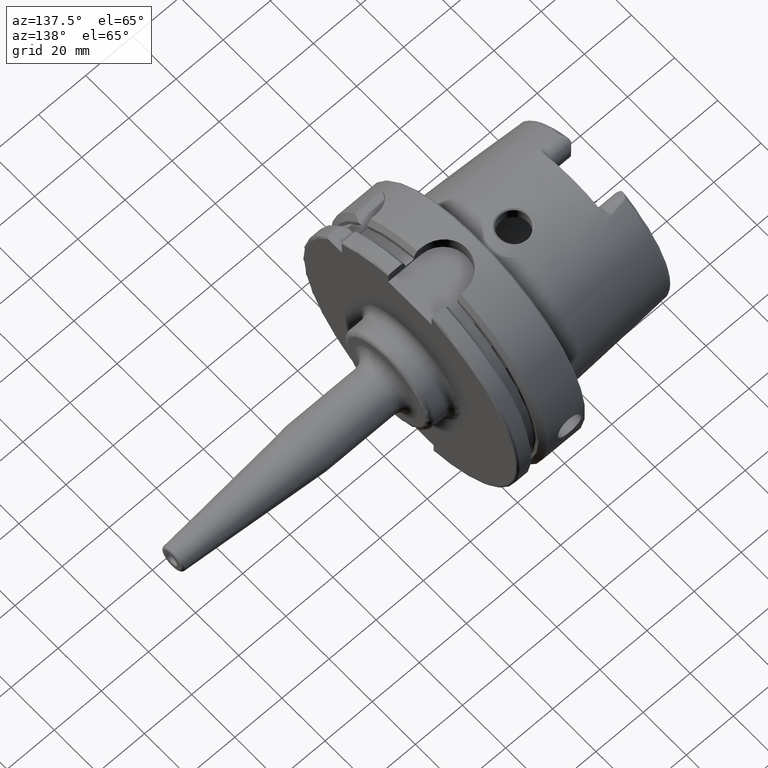
[diagram: clean part render]
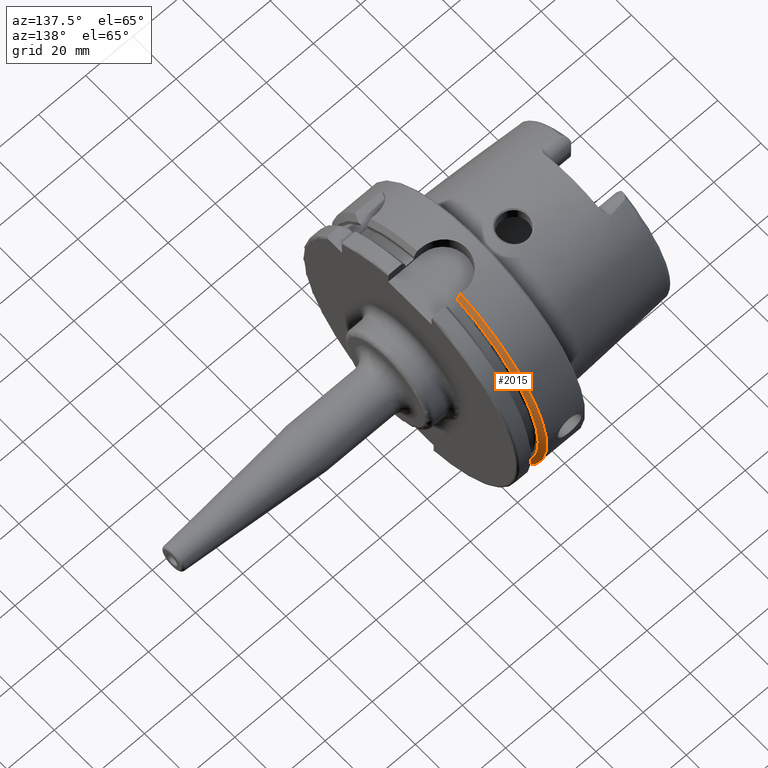
[diagram: same view with one face highlighted and labeled with its STEP entity id]
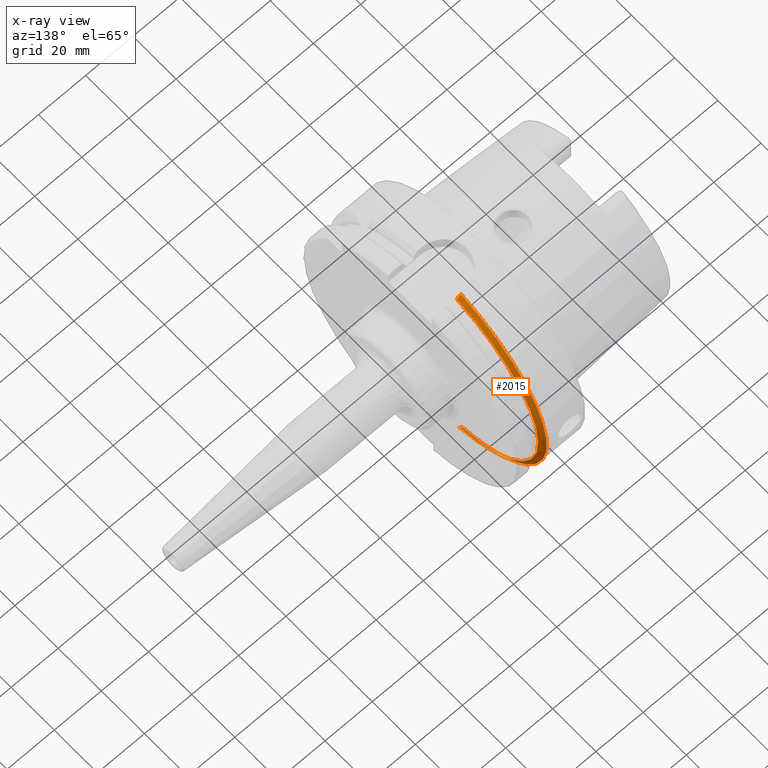
[diagram: x-ray of the same camera — body ghosted, the highlighted face saturated]
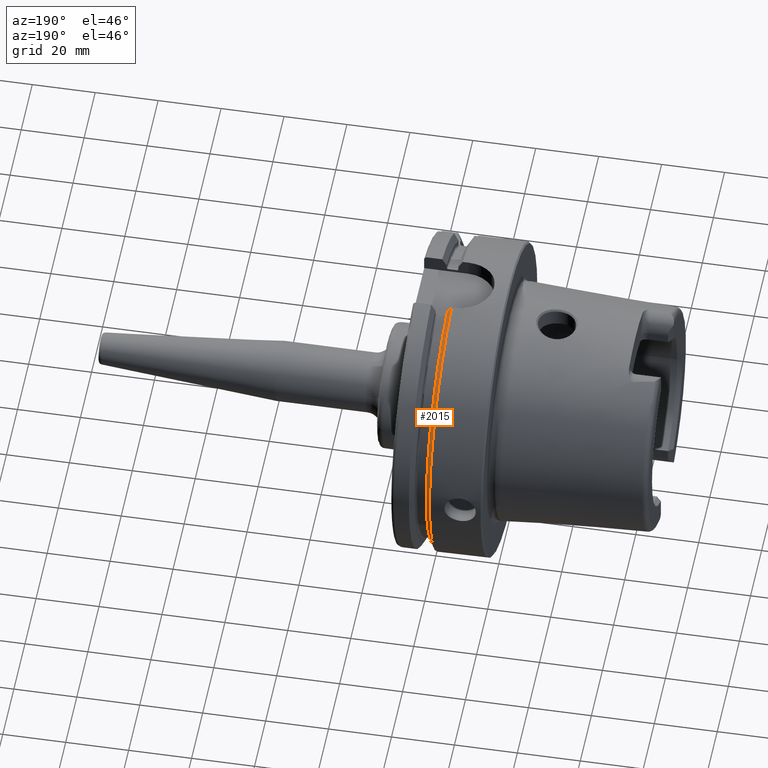
[diagram: same view with one face highlighted and labeled with its STEP entity id]
A machine part, auxiliary view. The second image highlights one B-rep face of the part: STEP entity #2015.
The next image is the same camera in x-ray: the body ghosted, the highlighted face saturated — about 6% of this face is hidden behind the body in this view.
A second angle (auxiliary view) of the same face is appended — the face is thin or edge-on in the first view.
In plain terms, the highlighted conical surface has half-angle 60 deg.
Its self-contained STEP definition (entity closure, byte-faithful):
#23=(
BOUNDED_CURVE()
B_SPLINE_CURVE(2,(#4102,#4103,#4104),.UNSPECIFIED.,.F.,.F.)
B_SPLINE_CURVE_WITH_KNOTS((3,3),(0.,0.282923490805558),.UNSPECIFIED.)
CURVE()
GEOMETRIC_REPRESENTATION_ITEM()
RATIONAL_B_SPLINE_CURVE((1.,1.00031934109636,1.))
REPRESENTATION_ITEM('')
);
#28=(
BOUNDED_CURVE()
B_SPLINE_CURVE(2,(#4267,#4268,#4269),.UNSPECIFIED.,.F.,.F.)
B_SPLINE_CURVE_WITH_KNOTS((3,3),(0.,0.281931851964124),.UNSPECIFIED.)
CURVE()
GEOMETRIC_REPRESENTATION_ITEM()
RATIONAL_B_SPLINE_CURVE((1.,1.00031639798907,1.))
REPRESENTATION_ITEM('')
);
#101=CONICAL_SURFACE('',#2245,48.7987976320958,1.0471975511966);
#465=FACE_OUTER_BOUND('',#588,.T.);
#588=EDGE_LOOP('',(#1674,#1675,#1676,#1677));
#702=CIRCLE('',#2195,50.);
#726=CIRCLE('',#2244,47.5975952641917);
#901=VERTEX_POINT('',#3983);
#902=VERTEX_POINT('',#3985);
#920=VERTEX_POINT('',#4101);
#945=VERTEX_POINT('',#4263);
#1143=EDGE_CURVE('',#902,#901,#702,.T.);
#1173=EDGE_CURVE('',#920,#902,#23,.T.);
#1213=EDGE_CURVE('',#920,#945,#726,.T.);
#1215=EDGE_CURVE('',#901,#945,#28,.T.);
#1674=ORIENTED_EDGE('',*,*,#1173,.T.);
#1675=ORIENTED_EDGE('',*,*,#1143,.T.);
#1676=ORIENTED_EDGE('',*,*,#1215,.T.);
#1677=ORIENTED_EDGE('',*,*,#1213,.F.);
#2015=ADVANCED_FACE('',(#465),#101,.T.);
#2195=AXIS2_PLACEMENT_3D('',#3986,#2615,#2616);
#2244=AXIS2_PLACEMENT_3D('',#4264,#2738,#2739);
#2245=AXIS2_PLACEMENT_3D('',#4266,#2741,#2742);
#2615=DIRECTION('center_axis',(1.,0.,0.));
#2616=DIRECTION('ref_axis',(0.,0.,-1.));
#2738=DIRECTION('center_axis',(1.,0.,0.));
#2739=DIRECTION('ref_axis',(0.,0.,-1.));
#2741=DIRECTION('center_axis',(-1.,0.,0.));
#2742=DIRECTION('ref_axis',(0.,1.,0.));
#3983=CARTESIAN_POINT('',(16.7379709790786,10.,48.9897948556636));
#3985=CARTESIAN_POINT('',(16.7379709790786,11.,-48.7749935930288));
#3986=CARTESIAN_POINT('Origin',(16.7379709790786,0.,0.));
#4101=CARTESIAN_POINT('',(18.125,11.,-46.3090819919139));
#4102=CARTESIAN_POINT('Ctrl Pts',(18.125,11.,-46.3090819919139));
#4103=CARTESIAN_POINT('Ctrl Pts',(17.4494711035784,11.,-47.5116880808765));
#4104=CARTESIAN_POINT('Ctrl Pts',(16.7379709790786,11.,-48.7749935930288));
#4263=CARTESIAN_POINT('',(18.125,10.,46.5352670018536));
#4264=CARTESIAN_POINT('Origin',(18.125,0.,0.));
#4266=CARTESIAN_POINT('Origin',(17.4314854895393,0.,0.));
#4267=CARTESIAN_POINT('Ctrl Pts',(16.7379709790786,10.,48.9897948556636));
#4268=CARTESIAN_POINT('Ctrl Pts',(17.4493054275198,10.,47.7323213252028));
#4269=CARTESIAN_POINT('Ctrl Pts',(18.125,10.,46.5352670018536));